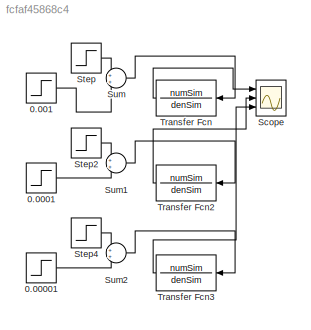
MODEL slx_fcfaf45868c4
KIND model
CONFIG AbsTol = auto
CONFIG EnableMultiTasking = off
CONFIG FixedStep = auto
CONFIG MaxStep = auto
CONFIG MinStep = auto
CONFIG RelTol = 1e-3
CONFIG SampleTimeConstraint = Unconstrained
CONFIG SolverName = ode23t
CONFIG StartTime = -0.1
CONFIG StopTime = 0.2
BLOCK [Step] 0.00001
  After = -100000
  SampleTime = 0
  Time = 0.00001
BLOCK [Step] 0.0001
  After = -10000
  SampleTime = 0
  Time = 0.0001
BLOCK [Step] 0.001
  After = -1000
  SampleTime = 0
  Time = 0.001
BLOCK [Scope] Scope
  Floating = off
  NumInputPorts = 3
  Ports = [3]
  ScopeSpecificationString = Simulink.scopes.TimeScopeBlockCfg('CurrentConfiguration', extmgr.ConfigurationSet(extmgr.Configuration('Core','General UI',true),extmgr.Configuration('Core','Source UI',true),extmgr.Configuration('Sources','WiredSimulink',true,'SampleTime','0'),extmgr.Configuration('Visuals','Time Domain',true,'SerializedDisplays',{struct('MinYLimReal','-717.02349','MaxYLimReal','1973.89265','YLabelReal','','MinYL...<+1926ch>
BLOCK [Step] Step
  After = 1000
  SampleTime = 0
  Time = 0
BLOCK [Step] Step2
  After = 10000
  SampleTime = 0
  Time = 0
BLOCK [Step] Step4
  After = 100000
  SampleTime = 0
  Time = 0
BLOCK [Sum] Sum
  Ports = [2, 1]
BLOCK [Sum] Sum1
  Ports = [2, 1]
BLOCK [Sum] Sum2
  Ports = [2, 1]
BLOCK [TransferFcn] Transfer Fcn
  Denominator = denSim
  Numerator = numSim
BLOCK [TransferFcn] Transfer Fcn2
  Denominator = denSim
  Numerator = numSim
BLOCK [TransferFcn] Transfer Fcn3
  Denominator = denSim
  Numerator = numSim
LINE 0.00001:1 -> Sum2:2
LINE 0.0001:1 -> Sum1:2
LINE 0.001:1 -> Sum:2
LINE Step2:1 -> Sum1:1
LINE Step4:1 -> Sum2:1
LINE Step:1 -> Sum:1
LINE Sum1:1 -> Transfer Fcn2:1
LINE Sum2:1 -> Transfer Fcn3:1
LINE Sum:1 -> Transfer Fcn:1
LINE Transfer Fcn2:1 -> Scope:2
LINE Transfer Fcn3:1 -> Scope:3
LINE Transfer Fcn:1 -> Scope:1
